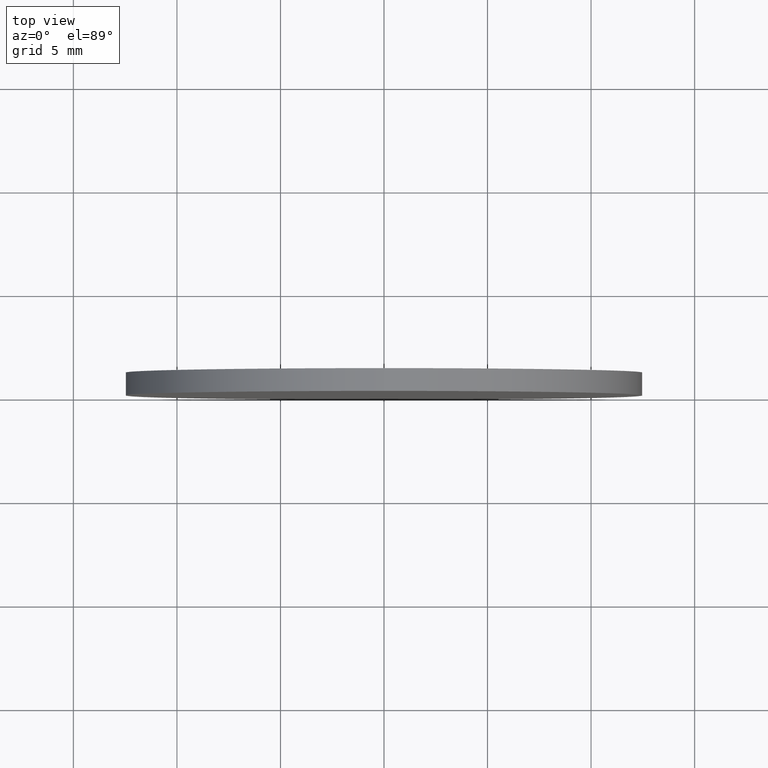
[diagram: clean part render]
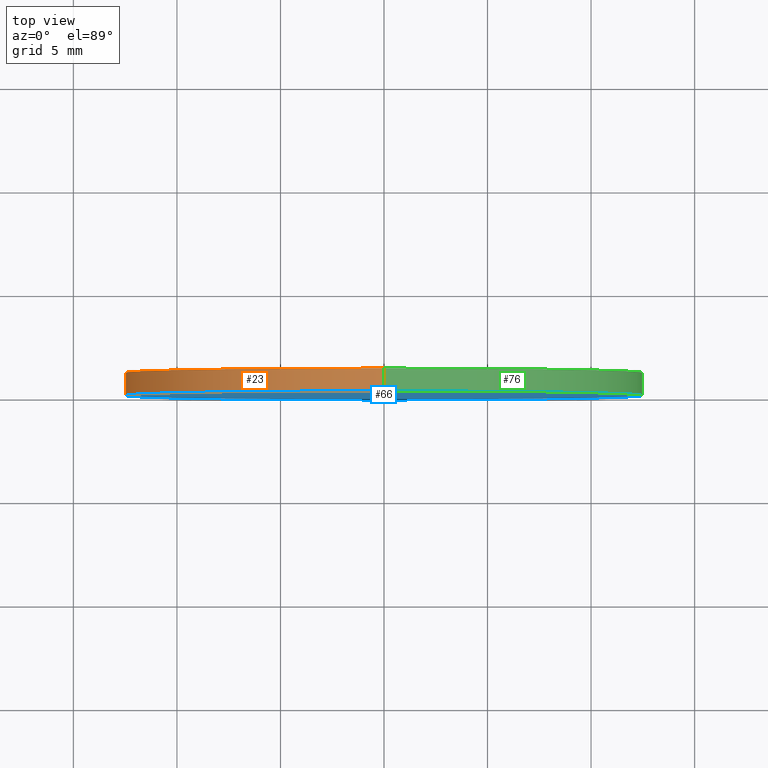
[diagram: same view with three faces highlighted in distinct colors, each labeled with its STEP entity id]
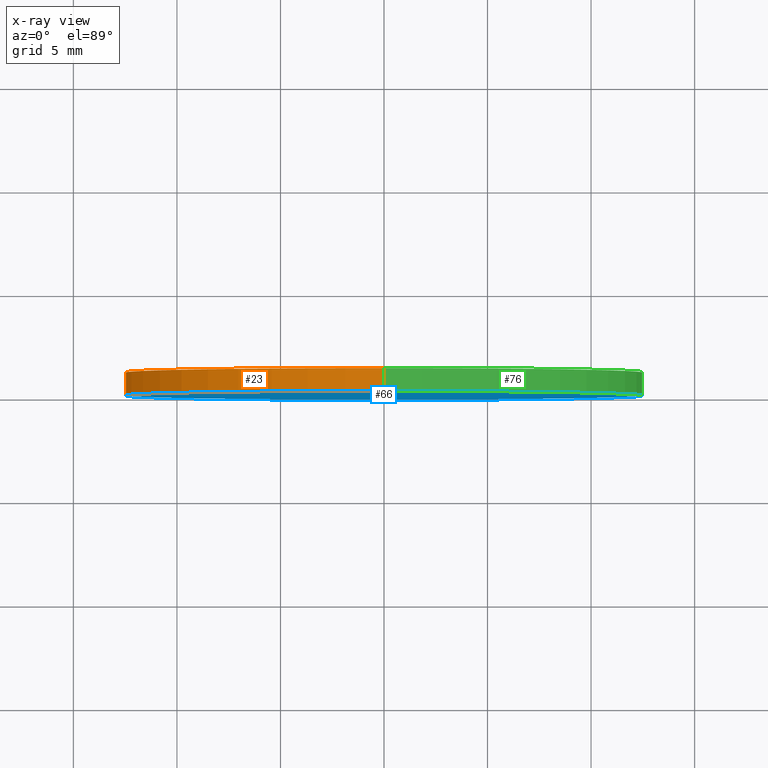
[diagram: x-ray of the same camera — body ghosted, the three highlighted faces saturated]
A machine part, top view with three faces highlighted in distinct colors.
The next image is the same camera in x-ray (body ghosted, the three faces saturated) — at least one of them is partly hidden behind the body in this view.
Their STEP definitions:

[orange] entity #23 — the highlighted cylindrical surface (partial cylindrical patch) has radius 12.5 mm, axis along (-0, -1, -0).
#2 = ORIENTED_EDGE ( 'NONE', *, *, #91, .F. ) ;
#4 = FACE_OUTER_BOUND ( 'NONE', #35, .T. ) ;
#10 = CARTESIAN_POINT ( 'NONE',  ( 0.0000000000000000000, 1.100000000000000100, -12.50000000000000000 ) ) ;
#15 = EDGE_CURVE ( 'NONE', #39, #50, #122, .T. ) ;
#19 = AXIS2_PLACEMENT_3D ( 'NONE', #93, #21, #84 ) ;
#21 = DIRECTION ( 'NONE',  ( 0.0000000000000000000, 1.000000000000000000, 0.0000000000000000000 ) ) ;
#22 = DIRECTION ( 'NONE',  ( -0.0000000000000000000, -1.000000000000000000, -0.0000000000000000000 ) ) ;
#23 = ADVANCED_FACE ( 'NONE', ( #4 ), #83, .T. ) ;
#31 = LINE ( 'NONE', #10, #111 ) ;
#35 = EDGE_LOOP ( 'NONE', ( #137, #2, #89, #116 ) ) ;
#39 = VERTEX_POINT ( 'NONE', #95 ) ;
#40 = AXIS2_PLACEMENT_3D ( 'NONE', #87, #56, #118 ) ;
#45 = CARTESIAN_POINT ( 'NONE',  ( 1.530808498934191500E-015, 0.0000000000000000000, 12.50000000000000000 ) ) ;
#49 = VERTEX_POINT ( 'NONE', #106 ) ;
#50 = VERTEX_POINT ( 'NONE', #45 ) ;
#54 = EDGE_CURVE ( 'NONE', #64, #49, #31, .T. ) ;
#55 = CARTESIAN_POINT ( 'NONE',  ( 0.0000000000000000000, 1.100000000000000100, -12.50000000000000000 ) ) ;
#56 = DIRECTION ( 'NONE',  ( -0.0000000000000000000, -1.000000000000000000, -0.0000000000000000000 ) ) ;
#62 = DIRECTION ( 'NONE',  ( 0.0000000000000000000, 0.0000000000000000000, 1.000000000000000000 ) ) ;
#64 = VERTEX_POINT ( 'NONE', #55 ) ;
#72 = EDGE_CURVE ( 'NONE', #49, #50, #90, .T. ) ;
#74 = CARTESIAN_POINT ( 'NONE',  ( 0.0000000000000000000, 0.0000000000000000000, 0.0000000000000000000 ) ) ;
#83 = CYLINDRICAL_SURFACE ( 'NONE', #40, 12.50000000000000000 ) ;
#84 = DIRECTION ( 'NONE',  ( 0.0000000000000000000, 0.0000000000000000000, 1.000000000000000000 ) ) ;
#86 = DIRECTION ( 'NONE',  ( -0.0000000000000000000, -1.000000000000000000, -0.0000000000000000000 ) ) ;
#87 = CARTESIAN_POINT ( 'NONE',  ( 0.0000000000000000000, 1.100000000000000100, 0.0000000000000000000 ) ) ;
#89 = ORIENTED_EDGE ( 'NONE', *, *, #54, .T. ) ;
#90 = CIRCLE ( 'NONE', #126, 12.50000000000000000 ) ;
#91 = EDGE_CURVE ( 'NONE', #64, #39, #113, .T. ) ;
#93 = CARTESIAN_POINT ( 'NONE',  ( 0.0000000000000000000, 1.100000000000000100, 0.0000000000000000000 ) ) ;
#95 = CARTESIAN_POINT ( 'NONE',  ( 1.530808498934191500E-015, 1.100000000000000100, 12.50000000000000000 ) ) ;
#106 = CARTESIAN_POINT ( 'NONE',  ( 0.0000000000000000000, 0.0000000000000000000, -12.50000000000000000 ) ) ;
#111 = VECTOR ( 'NONE', #22, 1000.000000000000000 ) ;
#113 = CIRCLE ( 'NONE', #19, 12.50000000000000000 ) ;
#116 = ORIENTED_EDGE ( 'NONE', *, *, #72, .T. ) ;
#118 = DIRECTION ( 'NONE',  ( 0.0000000000000000000, 0.0000000000000000000, -1.000000000000000000 ) ) ;
#122 = LINE ( 'NONE', #132, #133 ) ;
#126 = AXIS2_PLACEMENT_3D ( 'NONE', #74, #138, #62 ) ;
#132 = CARTESIAN_POINT ( 'NONE',  ( 1.530808498934191500E-015, 1.100000000000000100, 12.50000000000000000 ) ) ;
#133 = VECTOR ( 'NONE', #86, 1000.000000000000000 ) ;
#137 = ORIENTED_EDGE ( 'NONE', *, *, #15, .F. ) ;
#138 = DIRECTION ( 'NONE',  ( 0.0000000000000000000, 1.000000000000000000, 0.0000000000000000000 ) ) ;

[blue] entity #66 — the highlighted planar face has unit normal (0, 1, 0).
#8 = EDGE_CURVE ( 'NONE', #50, #49, #71, .T. ) ;
#9 = ORIENTED_EDGE ( 'NONE', *, *, #8, .F. ) ;
#11 = CARTESIAN_POINT ( 'NONE',  ( 0.0000000000000000000, 0.0000000000000000000, 0.0000000000000000000 ) ) ;
#13 = DIRECTION ( 'NONE',  ( 0.0000000000000000000, 1.000000000000000000, 0.0000000000000000000 ) ) ;
#30 = AXIS2_PLACEMENT_3D ( 'NONE', #75, #44, #104 ) ;
#37 = AXIS2_PLACEMENT_3D ( 'NONE', #11, #13, #129 ) ;
#44 = DIRECTION ( 'NONE',  ( 0.0000000000000000000, 1.000000000000000000, 0.0000000000000000000 ) ) ;
#45 = CARTESIAN_POINT ( 'NONE',  ( 1.530808498934191500E-015, 0.0000000000000000000, 12.50000000000000000 ) ) ;
#49 = VERTEX_POINT ( 'NONE', #106 ) ;
#50 = VERTEX_POINT ( 'NONE', #45 ) ;
#62 = DIRECTION ( 'NONE',  ( 0.0000000000000000000, 0.0000000000000000000, 1.000000000000000000 ) ) ;
#65 = PLANE ( 'NONE',  #30 ) ;
#66 = ADVANCED_FACE ( 'NONE', ( #88 ), #65, .F. ) ;
#71 = CIRCLE ( 'NONE', #37, 12.50000000000000000 ) ;
#72 = EDGE_CURVE ( 'NONE', #49, #50, #90, .T. ) ;
#74 = CARTESIAN_POINT ( 'NONE',  ( 0.0000000000000000000, 0.0000000000000000000, 0.0000000000000000000 ) ) ;
#75 = CARTESIAN_POINT ( 'NONE',  ( 0.0000000000000000000, 0.0000000000000000000, 0.0000000000000000000 ) ) ;
#82 = EDGE_LOOP ( 'NONE', ( #110, #9 ) ) ;
#88 = FACE_OUTER_BOUND ( 'NONE', #82, .T. ) ;
#90 = CIRCLE ( 'NONE', #126, 12.50000000000000000 ) ;
#104 = DIRECTION ( 'NONE',  ( 0.0000000000000000000, -0.0000000000000000000, 1.000000000000000000 ) ) ;
#106 = CARTESIAN_POINT ( 'NONE',  ( 0.0000000000000000000, 0.0000000000000000000, -12.50000000000000000 ) ) ;
#110 = ORIENTED_EDGE ( 'NONE', *, *, #72, .F. ) ;
#126 = AXIS2_PLACEMENT_3D ( 'NONE', #74, #138, #62 ) ;
#129 = DIRECTION ( 'NONE',  ( 0.0000000000000000000, 0.0000000000000000000, 1.000000000000000000 ) ) ;
#138 = DIRECTION ( 'NONE',  ( 0.0000000000000000000, 1.000000000000000000, 0.0000000000000000000 ) ) ;

[green] entity #76 — the highlighted cylindrical surface (partial cylindrical patch) has radius 12.5 mm, axis along (-0, -1, -0).
#3 = FACE_OUTER_BOUND ( 'NONE', #107, .T. ) ;
#7 = CARTESIAN_POINT ( 'NONE',  ( 0.0000000000000000000, 1.100000000000000100, 0.0000000000000000000 ) ) ;
#8 = EDGE_CURVE ( 'NONE', #50, #49, #71, .T. ) ;
#10 = CARTESIAN_POINT ( 'NONE',  ( 0.0000000000000000000, 1.100000000000000100, -12.50000000000000000 ) ) ;
#11 = CARTESIAN_POINT ( 'NONE',  ( 0.0000000000000000000, 0.0000000000000000000, 0.0000000000000000000 ) ) ;
#13 = DIRECTION ( 'NONE',  ( 0.0000000000000000000, 1.000000000000000000, 0.0000000000000000000 ) ) ;
#15 = EDGE_CURVE ( 'NONE', #39, #50, #122, .T. ) ;
#18 = CYLINDRICAL_SURFACE ( 'NONE', #63, 12.50000000000000000 ) ;
#22 = DIRECTION ( 'NONE',  ( -0.0000000000000000000, -1.000000000000000000, -0.0000000000000000000 ) ) ;
#28 = CIRCLE ( 'NONE', #68, 12.50000000000000000 ) ;
#29 = ORIENTED_EDGE ( 'NONE', *, *, #15, .T. ) ;
#31 = LINE ( 'NONE', #10, #111 ) ;
#37 = AXIS2_PLACEMENT_3D ( 'NONE', #11, #13, #129 ) ;
#39 = VERTEX_POINT ( 'NONE', #95 ) ;
#45 = CARTESIAN_POINT ( 'NONE',  ( 1.530808498934191500E-015, 0.0000000000000000000, 12.50000000000000000 ) ) ;
#47 = ORIENTED_EDGE ( 'NONE', *, *, #8, .T. ) ;
#49 = VERTEX_POINT ( 'NONE', #106 ) ;
#50 = VERTEX_POINT ( 'NONE', #45 ) ;
#54 = EDGE_CURVE ( 'NONE', #64, #49, #31, .T. ) ;
#55 = CARTESIAN_POINT ( 'NONE',  ( 0.0000000000000000000, 1.100000000000000100, -12.50000000000000000 ) ) ;
#59 = ORIENTED_EDGE ( 'NONE', *, *, #128, .F. ) ;
#63 = AXIS2_PLACEMENT_3D ( 'NONE', #7, #85, #94 ) ;
#64 = VERTEX_POINT ( 'NONE', #55 ) ;
#68 = AXIS2_PLACEMENT_3D ( 'NONE', #119, #140, #124 ) ;
#71 = CIRCLE ( 'NONE', #37, 12.50000000000000000 ) ;
#76 = ADVANCED_FACE ( 'NONE', ( #3 ), #18, .T. ) ;
#85 = DIRECTION ( 'NONE',  ( -0.0000000000000000000, -1.000000000000000000, -0.0000000000000000000 ) ) ;
#86 = DIRECTION ( 'NONE',  ( -0.0000000000000000000, -1.000000000000000000, -0.0000000000000000000 ) ) ;
#92 = ORIENTED_EDGE ( 'NONE', *, *, #54, .F. ) ;
#94 = DIRECTION ( 'NONE',  ( 0.0000000000000000000, 0.0000000000000000000, -1.000000000000000000 ) ) ;
#95 = CARTESIAN_POINT ( 'NONE',  ( 1.530808498934191500E-015, 1.100000000000000100, 12.50000000000000000 ) ) ;
#106 = CARTESIAN_POINT ( 'NONE',  ( 0.0000000000000000000, 0.0000000000000000000, -12.50000000000000000 ) ) ;
#107 = EDGE_LOOP ( 'NONE', ( #59, #29, #47, #92 ) ) ;
#111 = VECTOR ( 'NONE', #22, 1000.000000000000000 ) ;
#119 = CARTESIAN_POINT ( 'NONE',  ( 0.0000000000000000000, 1.100000000000000100, 0.0000000000000000000 ) ) ;
#122 = LINE ( 'NONE', #132, #133 ) ;
#124 = DIRECTION ( 'NONE',  ( 0.0000000000000000000, 0.0000000000000000000, 1.000000000000000000 ) ) ;
#128 = EDGE_CURVE ( 'NONE', #39, #64, #28, .T. ) ;
#129 = DIRECTION ( 'NONE',  ( 0.0000000000000000000, 0.0000000000000000000, 1.000000000000000000 ) ) ;
#132 = CARTESIAN_POINT ( 'NONE',  ( 1.530808498934191500E-015, 1.100000000000000100, 12.50000000000000000 ) ) ;
#133 = VECTOR ( 'NONE', #86, 1000.000000000000000 ) ;
#140 = DIRECTION ( 'NONE',  ( 0.0000000000000000000, 1.000000000000000000, 0.0000000000000000000 ) ) ;